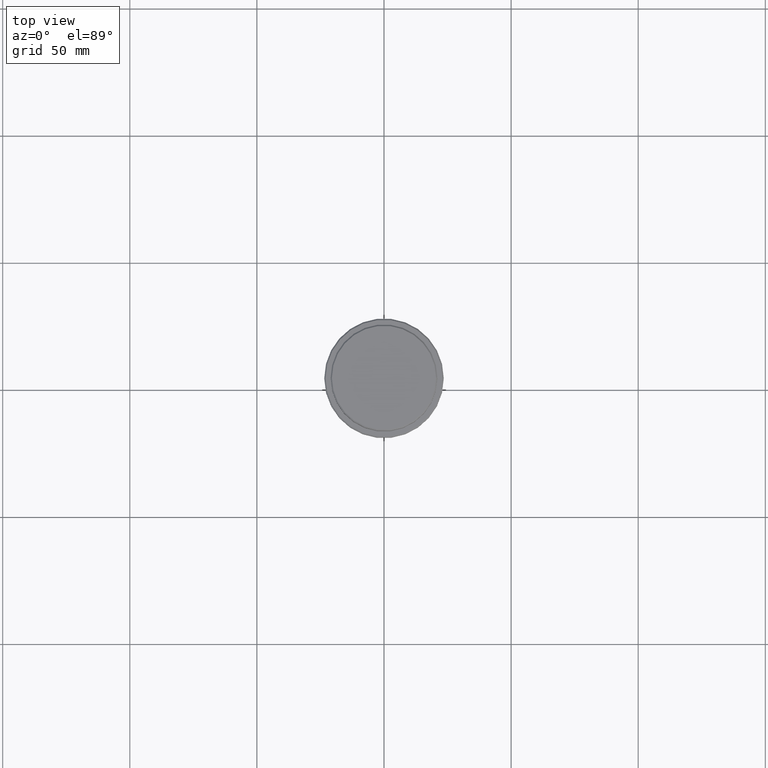
[diagram: clean part render]
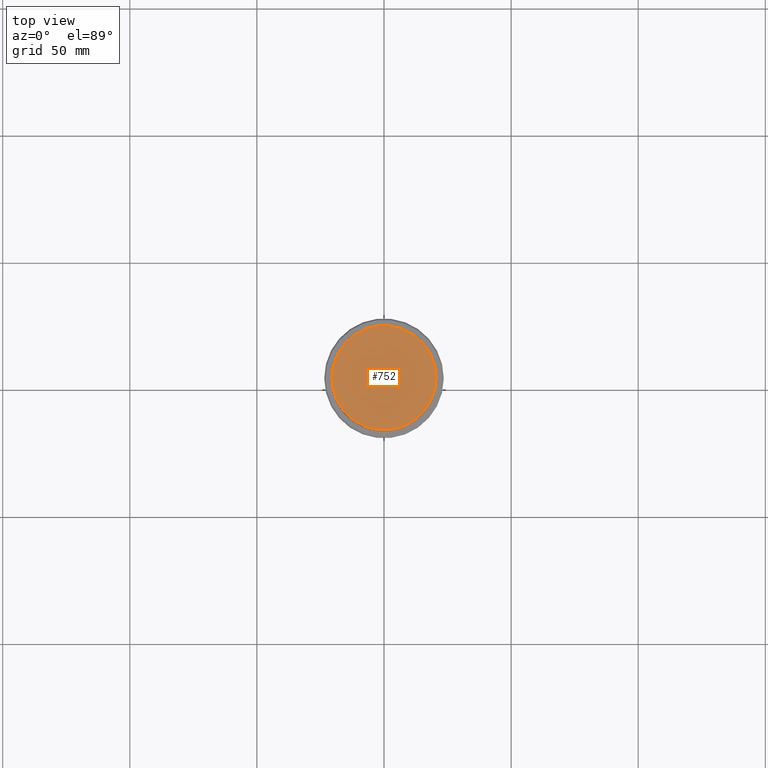
[diagram: same view with one face highlighted and labeled with its STEP entity id]
A machine part, top view. The second image highlights one B-rep face of the part: STEP entity #752.
In plain terms, the highlighted planar face has unit normal (0, -0, 1).
Its self-contained STEP definition (entity closure, byte-faithful):
#129 = VERTEX_POINT ( 'NONE', #851 ) ;
#246 = DIRECTION ( 'NONE',  ( 0.000000000000000000, -0.000000000000000000, 1.000000000000000000 ) ) ;
#308 = CIRCLE ( 'NONE', #719, 20.50000000000004619 ) ;
#400 = DIRECTION ( 'NONE',  ( 1.000000000000000000, 0.000000000000000000, 0.000000000000000000 ) ) ;
#473 = CARTESIAN_POINT ( 'NONE',  ( 0.000000000000000000, 0.000000000000000000, 0.000000000000000000 ) ) ;
#512 = CIRCLE ( 'NONE', #561, 20.50000000000004619 ) ;
#528 = EDGE_LOOP ( 'NONE', ( #1285, #1203 ) ) ;
#561 = AXIS2_PLACEMENT_3D ( 'NONE', #1316, #1122, #803 ) ;
#638 = CARTESIAN_POINT ( 'NONE',  ( -20.50000000000004619, 0.000000000000000000, 0.000000000000000000 ) ) ;
#705 = CARTESIAN_POINT ( 'NONE',  ( 0.000000000000000000, 0.000000000000000000, 0.000000000000000000 ) ) ;
#719 = AXIS2_PLACEMENT_3D ( 'NONE', #705, #1139, #400 ) ;
#752 = ADVANCED_FACE ( 'NONE', ( #1141 ), #1356, .T. ) ;
#803 = DIRECTION ( 'NONE',  ( 1.000000000000000000, 0.000000000000000000, 0.000000000000000000 ) ) ;
#851 = CARTESIAN_POINT ( 'NONE',  ( 20.50000000000004619, 2.541142108230760635E-15, 0.000000000000000000 ) ) ;
#899 = DIRECTION ( 'NONE',  ( 1.000000000000000000, 0.000000000000000000, 0.000000000000000000 ) ) ;
#955 = VERTEX_POINT ( 'NONE', #638 ) ;
#1068 = EDGE_CURVE ( 'NONE', #129, #955, #512, .T. ) ;
#1122 = DIRECTION ( 'NONE',  ( -0.000000000000000000, -0.000000000000000000, 1.000000000000000000 ) ) ;
#1139 = DIRECTION ( 'NONE',  ( -0.000000000000000000, -0.000000000000000000, 1.000000000000000000 ) ) ;
#1141 = FACE_OUTER_BOUND ( 'NONE', #528, .T. ) ;
#1147 = AXIS2_PLACEMENT_3D ( 'NONE', #473, #246, #899 ) ;
#1173 = EDGE_CURVE ( 'NONE', #955, #129, #308, .T. ) ;
#1203 = ORIENTED_EDGE ( 'NONE', *, *, #1068, .T. ) ;
#1285 = ORIENTED_EDGE ( 'NONE', *, *, #1173, .T. ) ;
#1316 = CARTESIAN_POINT ( 'NONE',  ( 0.000000000000000000, 0.000000000000000000, 0.000000000000000000 ) ) ;
#1356 = PLANE ( 'NONE',  #1147 ) ;